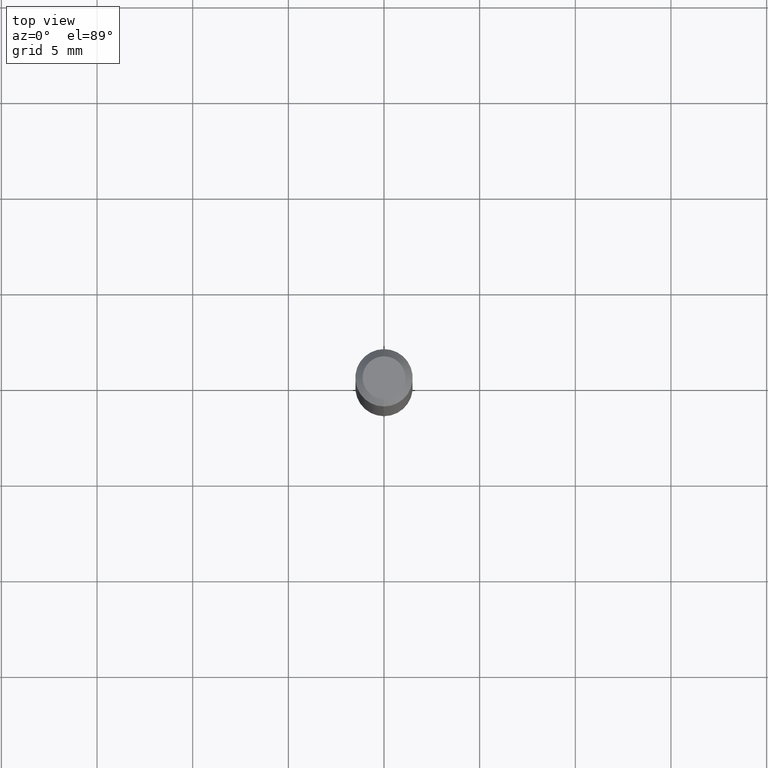
[diagram: clean part render]
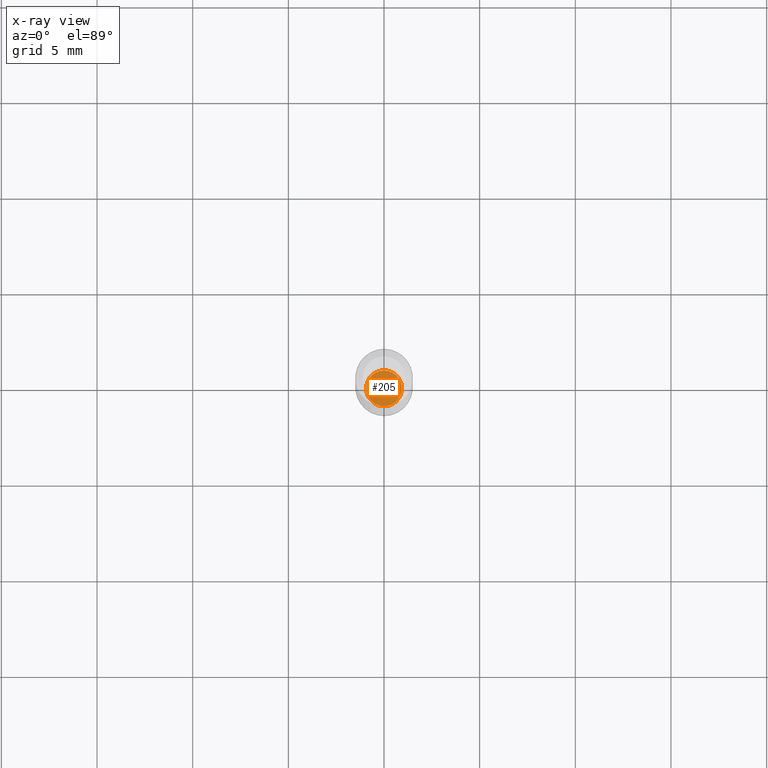
[diagram: x-ray — body ghosted, one internal face saturated and labeled with its STEP entity id]
A machine part, top view, then the same camera in x-ray: the body is ghosted and one INTERNAL B-rep face — a face not visible from any outside direction — is saturated and labeled: STEP entity #205.
In plain terms, the highlighted planar face has unit normal (-0, 0, 1).
Its self-contained STEP definition (entity closure, byte-faithful):
#21 = DIRECTION ( 'NONE',  ( -2.445484334717468627E-29, 3.491459101101016620E-15, 1.000000000000000000 ) ) ;
#72 = FACE_OUTER_BOUND ( 'NONE', #122, .T. ) ;
#79 = ORIENTED_EDGE ( 'NONE', *, *, #351, .F. ) ;
#98 = DIRECTION ( 'NONE',  ( -2.445484334717468907E-29, 3.491459101101016620E-15, 1.000000000000000000 ) ) ;
#122 = EDGE_LOOP ( 'NONE', ( #186, #79 ) ) ;
#135 = DIRECTION ( 'NONE',  ( -6.982962677686265133E-15, -1.000000000000000000, 0.000000000000000000 ) ) ;
#179 = CARTESIAN_POINT ( 'NONE',  ( 2.639666263349080021E-16, 0.03689999999999556135, -1.271700000000000053 ) ) ;
#181 = DIRECTION ( 'NONE',  ( -2.445484334717468907E-29, 3.491459101101016620E-15, 1.000000000000000000 ) ) ;
#186 = ORIENTED_EDGE ( 'NONE', *, *, #496, .F. ) ;
#205 = ADVANCED_FACE ( 'NONE', ( #72 ), #230, .F. ) ;
#219 = AXIS2_PLACEMENT_3D ( 'NONE', #317, #98, #135 ) ;
#230 = PLANE ( 'NONE',  #332 ) ;
#232 = CIRCLE ( 'NONE', #219, 0.03690000000000000224 ) ;
#268 = CARTESIAN_POINT ( 'NONE',  ( -2.576713228065921345E-16, -0.03690000000000443620, -1.271700000000000053 ) ) ;
#269 = VERTEX_POINT ( 'NONE', #268 ) ;
#298 = CIRCLE ( 'NONE', #495, 0.03690000000000000224 ) ;
#317 = CARTESIAN_POINT ( 'NONE',  ( 3.109922428460205583E-29, -4.440088538870162843E-15, -1.271700000000000053 ) ) ;
#332 = AXIS2_PLACEMENT_3D ( 'NONE', #380, #21, #491 ) ;
#351 = EDGE_CURVE ( 'NONE', #353, #269, #232, .T. ) ;
#353 = VERTEX_POINT ( 'NONE', #179 ) ;
#380 = CARTESIAN_POINT ( 'NONE',  ( 3.109922428460205583E-29, -4.440088538870162843E-15, -1.271700000000000053 ) ) ;
#403 = DIRECTION ( 'NONE',  ( -6.982962677686265133E-15, -1.000000000000000000, 0.000000000000000000 ) ) ;
#406 = CARTESIAN_POINT ( 'NONE',  ( 3.109922428460205583E-29, -4.440088538870162843E-15, -1.271700000000000053 ) ) ;
#491 = DIRECTION ( 'NONE',  ( -6.982962677686265922E-15, -1.000000000000000000, 3.491459101101016620E-15 ) ) ;
#495 = AXIS2_PLACEMENT_3D ( 'NONE', #406, #181, #403 ) ;
#496 = EDGE_CURVE ( 'NONE', #269, #353, #298, .T. ) ;